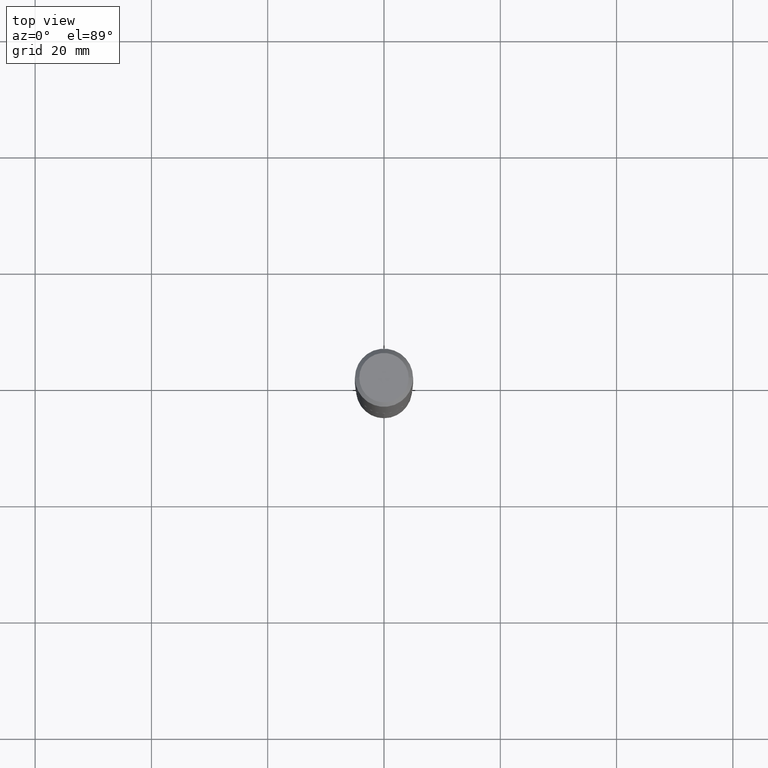
[diagram: clean part render]
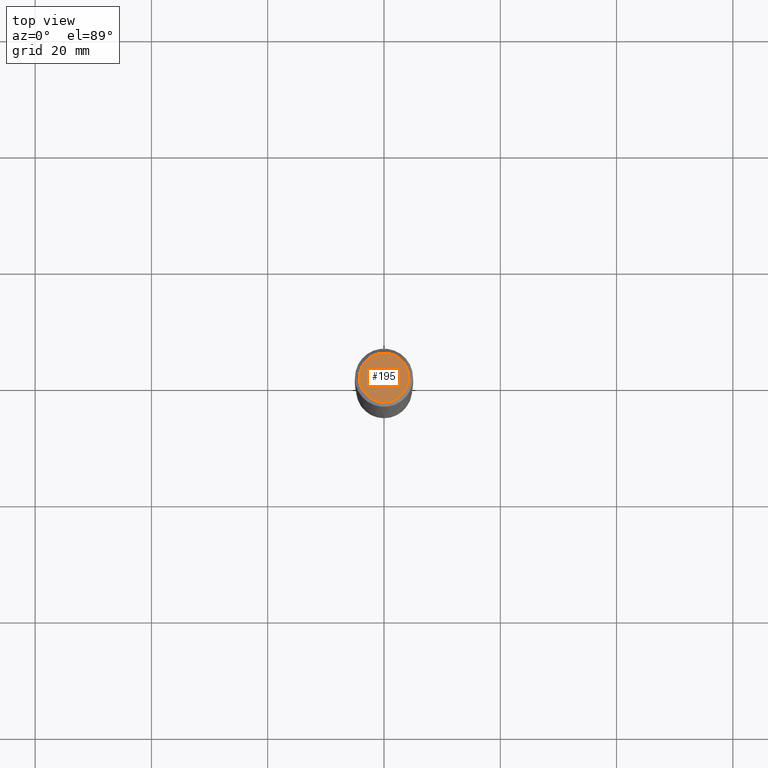
[diagram: same view with one face highlighted and labeled with its STEP entity id]
A machine part, top view. The second image highlights one B-rep face of the part: STEP entity #195.
In plain terms, the highlighted planar face has unit normal (0, -0, -1).
Its self-contained STEP definition (entity closure, byte-faithful):
#9 = DIRECTION ( 'NONE',  ( -1.000000000000000000, 6.982962677686265922E-15, -4.876176775795935793E-29 ) ) ;
#32 = AXIS2_PLACEMENT_3D ( 'NONE', #246, #250, #313 ) ;
#38 = CARTESIAN_POINT ( 'NONE',  ( 0.1673224999999999851, -1.300749711163072397E-15, 4.096137381456741925E-18 ) ) ;
#43 = CARTESIAN_POINT ( 'NONE',  ( -0.1673224999999999851, 1.219954130253505263E-15, 4.096137381439757534E-18 ) ) ;
#45 = CIRCLE ( 'NONE', #77, 0.1673224999999999851 ) ;
#48 = DIRECTION ( 'NONE',  ( -2.445468806185136597E-29, 3.491481338843145583E-15, 1.000000000000000000 ) ) ;
#77 = AXIS2_PLACEMENT_3D ( 'NONE', #334, #48, #297 ) ;
#85 = DIRECTION ( 'NONE',  ( 2.438088387897960049E-29, -3.491481338843145188E-15, -1.000000000000000000 ) ) ;
#124 = CARTESIAN_POINT ( 'NONE',  ( -5.008488096090108951E-47, 7.150793614331948590E-33, 2.048068690724054183E-18 ) ) ;
#178 = AXIS2_PLACEMENT_3D ( 'NONE', #124, #85, #9 ) ;
#186 = EDGE_CURVE ( 'NONE', #442, #212, #45, .T. ) ;
#191 = FACE_OUTER_BOUND ( 'NONE', #406, .T. ) ;
#195 = ADVANCED_FACE ( 'NONE', ( #191 ), #393, .F. ) ;
#212 = VERTEX_POINT ( 'NONE', #43 ) ;
#246 = CARTESIAN_POINT ( 'NONE',  ( -1.001697619218021790E-46, 1.430158722866389718E-32, 4.096137381448108366E-18 ) ) ;
#249 = CIRCLE ( 'NONE', #32, 0.1673224999999999851 ) ;
#250 = DIRECTION ( 'NONE',  ( -2.445468806185136597E-29, 3.491481338843145583E-15, 1.000000000000000000 ) ) ;
#260 = ORIENTED_EDGE ( 'NONE', *, *, #186, .T. ) ;
#297 = DIRECTION ( 'NONE',  ( 1.000000000000000000, -6.982962677686267499E-15, 4.876294436782262290E-29 ) ) ;
#313 = DIRECTION ( 'NONE',  ( 1.000000000000000000, -6.982962677686267499E-15, 4.876294436782262290E-29 ) ) ;
#334 = CARTESIAN_POINT ( 'NONE',  ( -1.001697619218021790E-46, 1.430158722866389718E-32, 4.096137381448108366E-18 ) ) ;
#393 = PLANE ( 'NONE',  #178 ) ;
#406 = EDGE_LOOP ( 'NONE', ( #458, #260 ) ) ;
#417 = EDGE_CURVE ( 'NONE', #212, #442, #249, .T. ) ;
#442 = VERTEX_POINT ( 'NONE', #38 ) ;
#458 = ORIENTED_EDGE ( 'NONE', *, *, #417, .T. ) ;